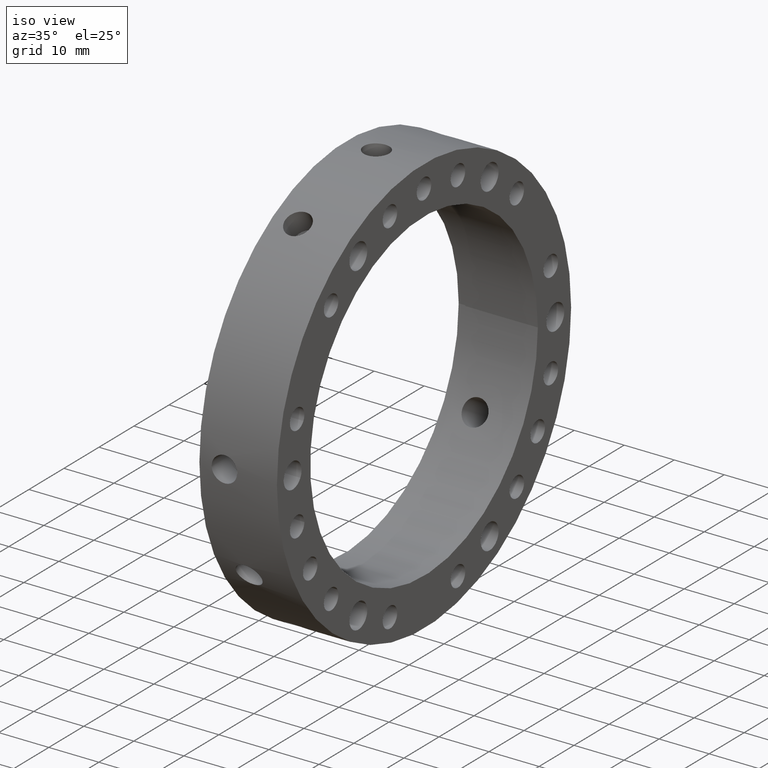
[diagram: clean part render]
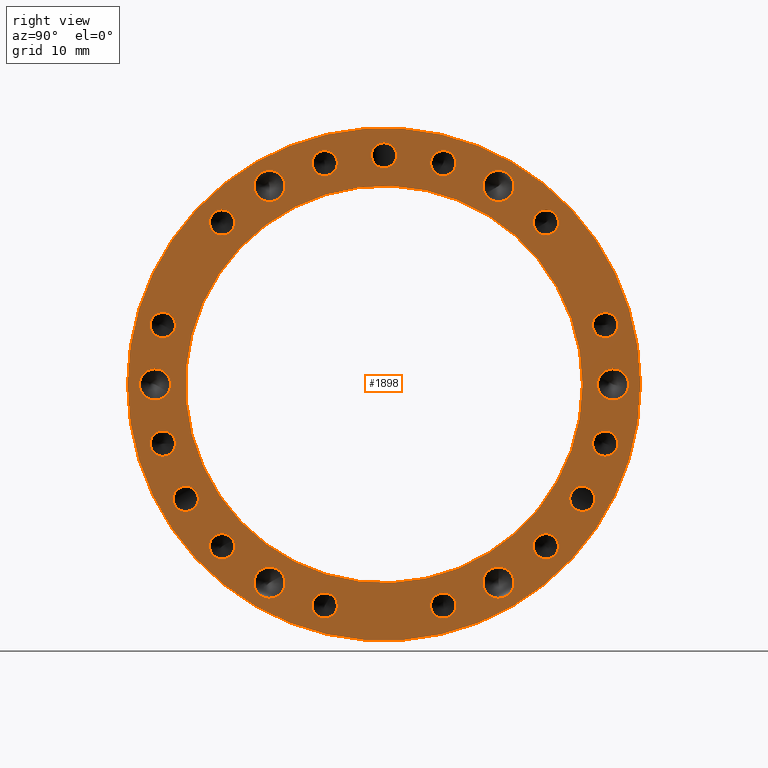
[diagram: tour spotlight — one face highlighted and labeled with its STEP entity id]
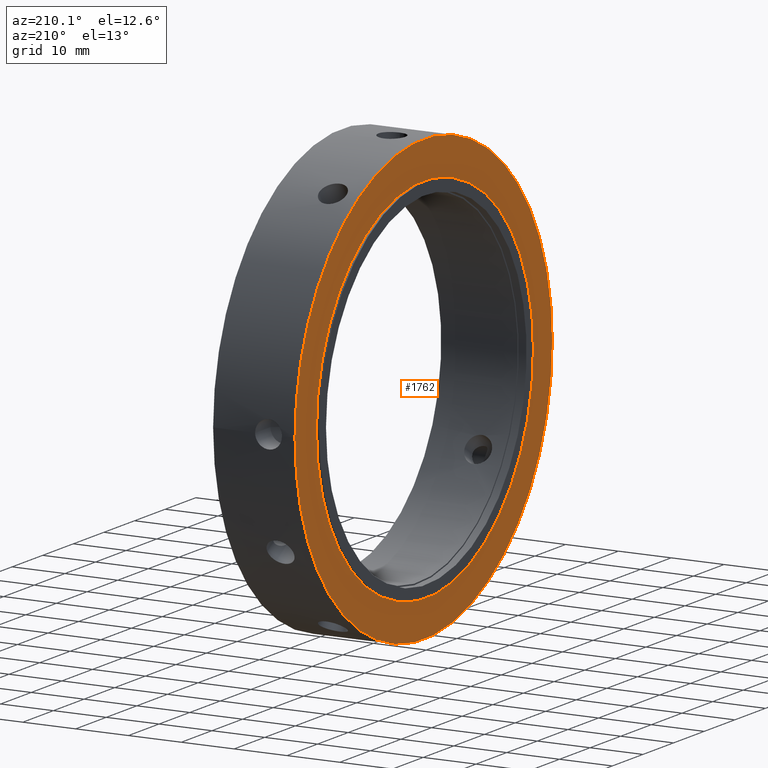
[diagram: tour spotlight — one face highlighted and labeled with its STEP entity id]
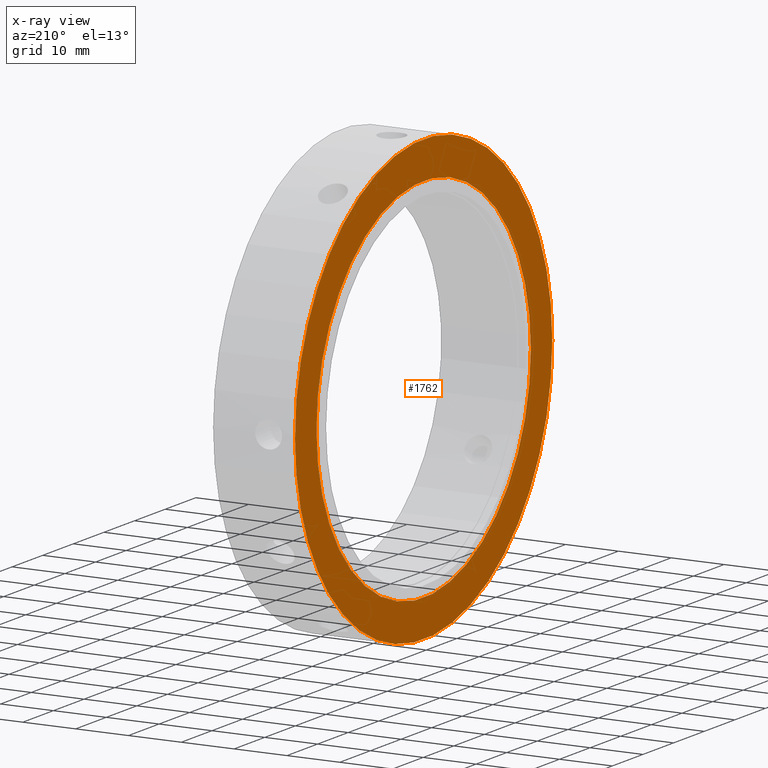
[diagram: x-ray of the same camera — body ghosted, this tour face saturated]
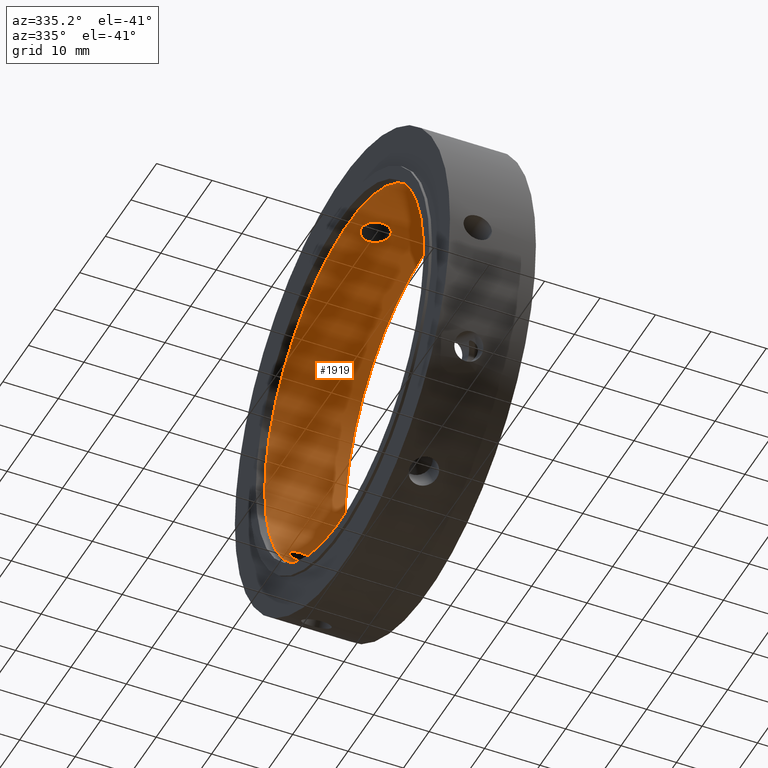
[diagram: tour spotlight — one face highlighted and labeled with its STEP entity id]
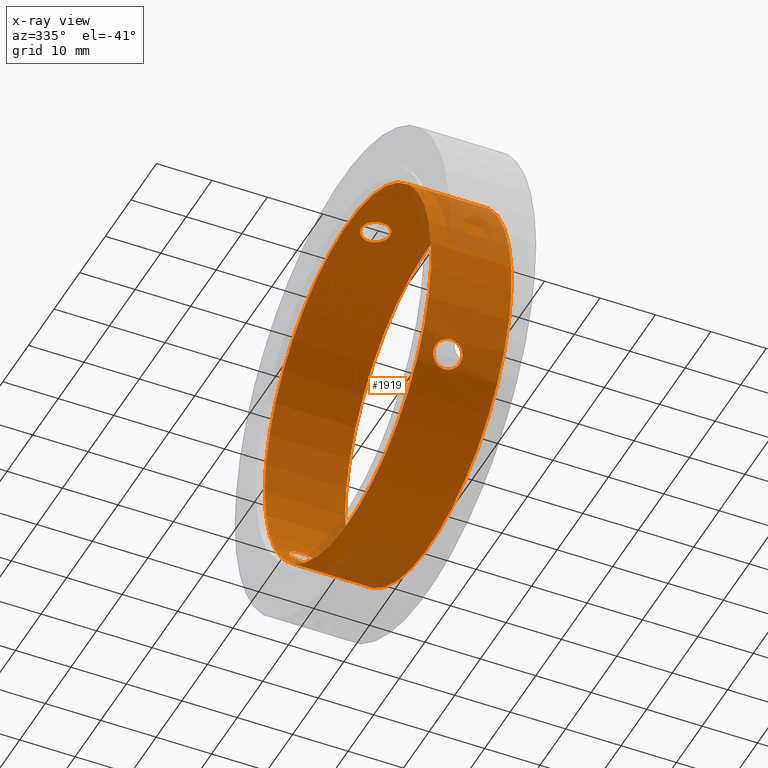
[diagram: x-ray of the same camera — body ghosted, this tour face saturated]
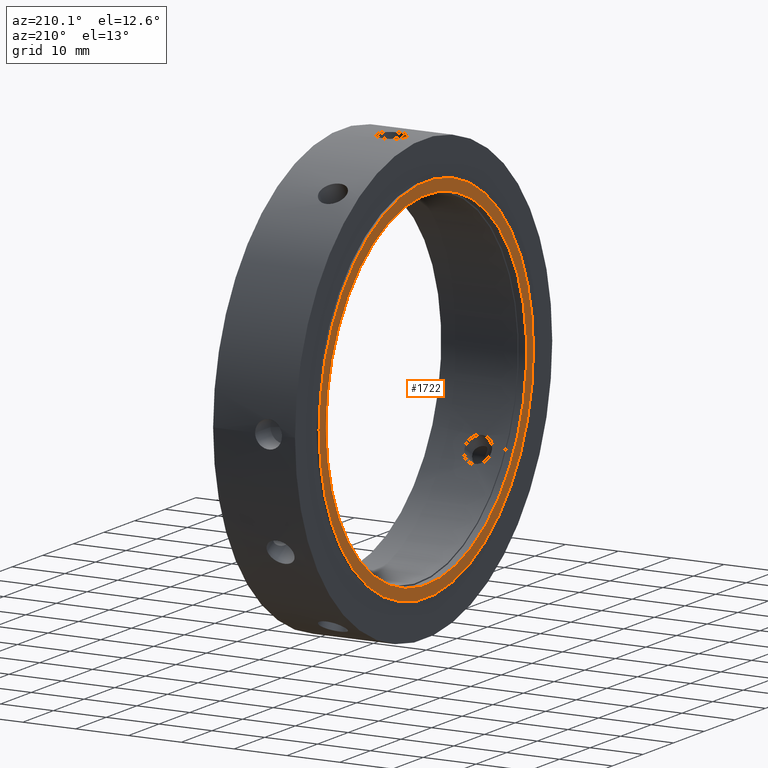
[diagram: tour spotlight — one face highlighted and labeled with its STEP entity id]
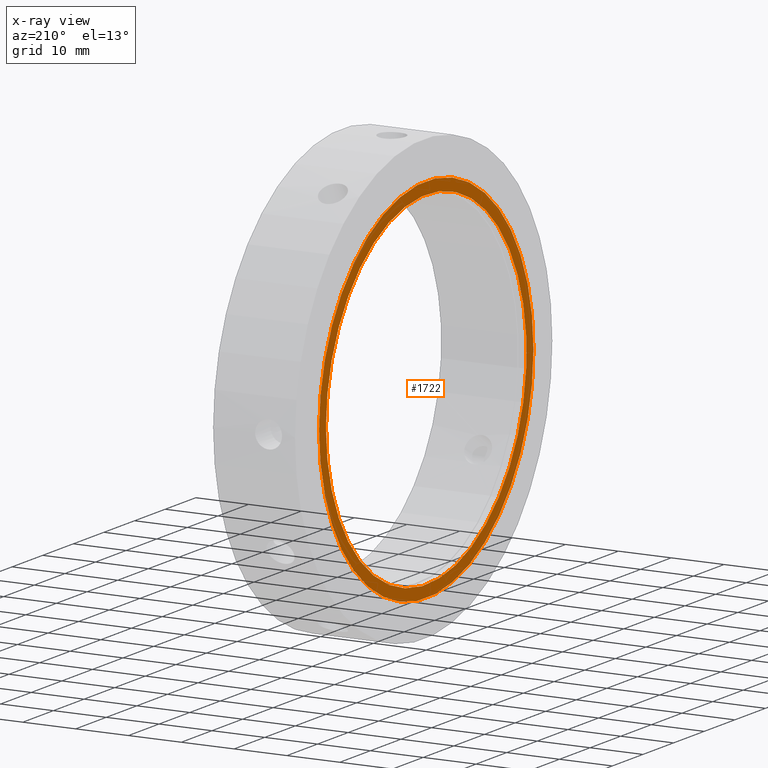
[diagram: x-ray of the same camera — body ghosted, this tour face saturated]
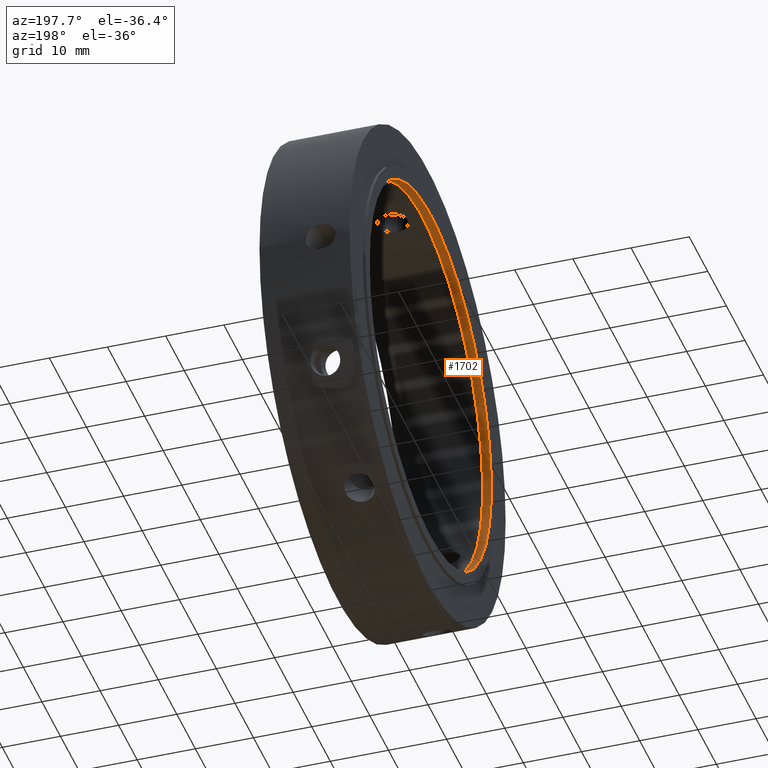
[diagram: tour spotlight — one face highlighted and labeled with its STEP entity id]
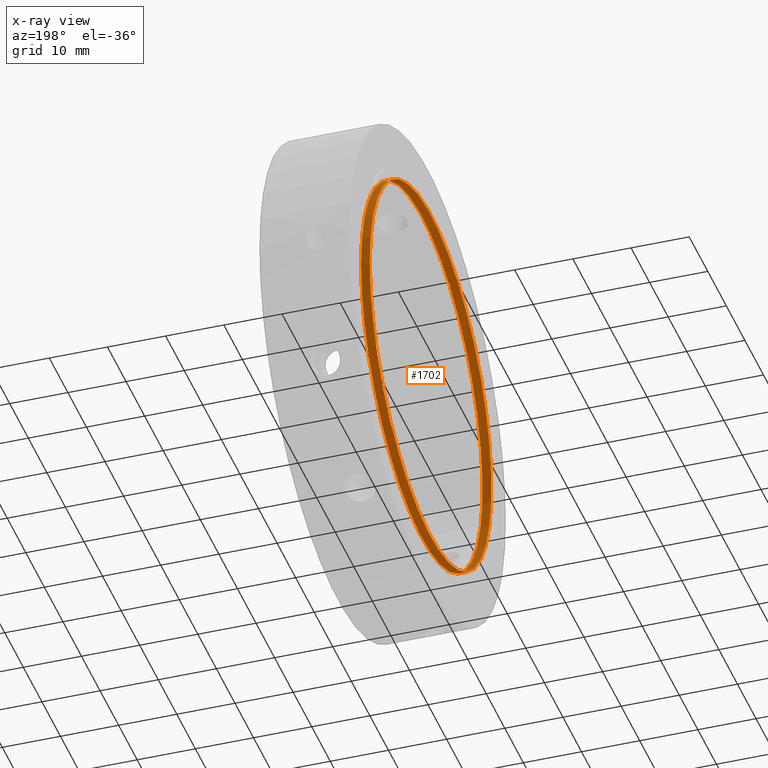
[diagram: x-ray of the same camera — body ghosted, this tour face saturated]
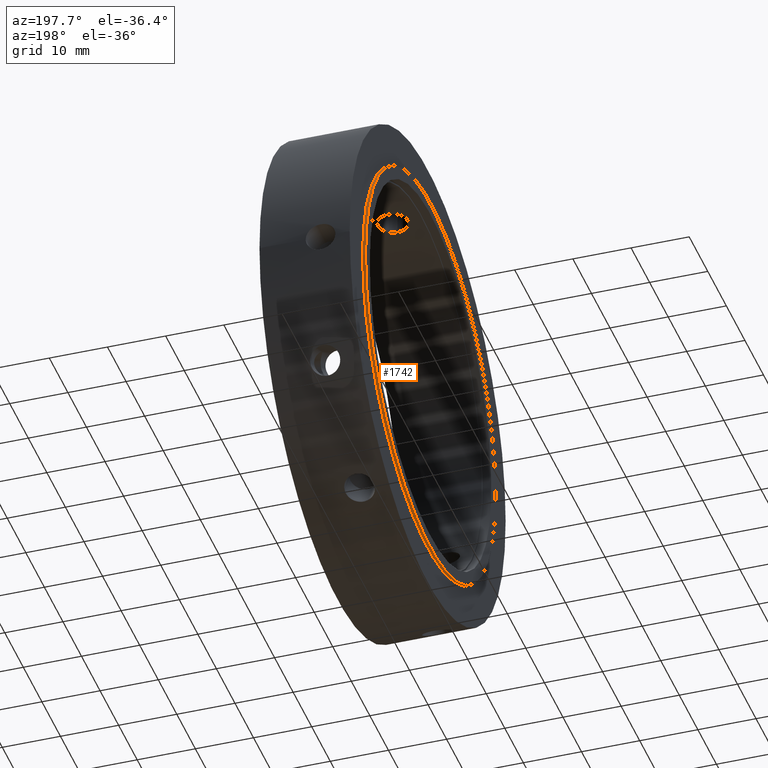
[diagram: tour spotlight — one face highlighted and labeled with its STEP entity id]
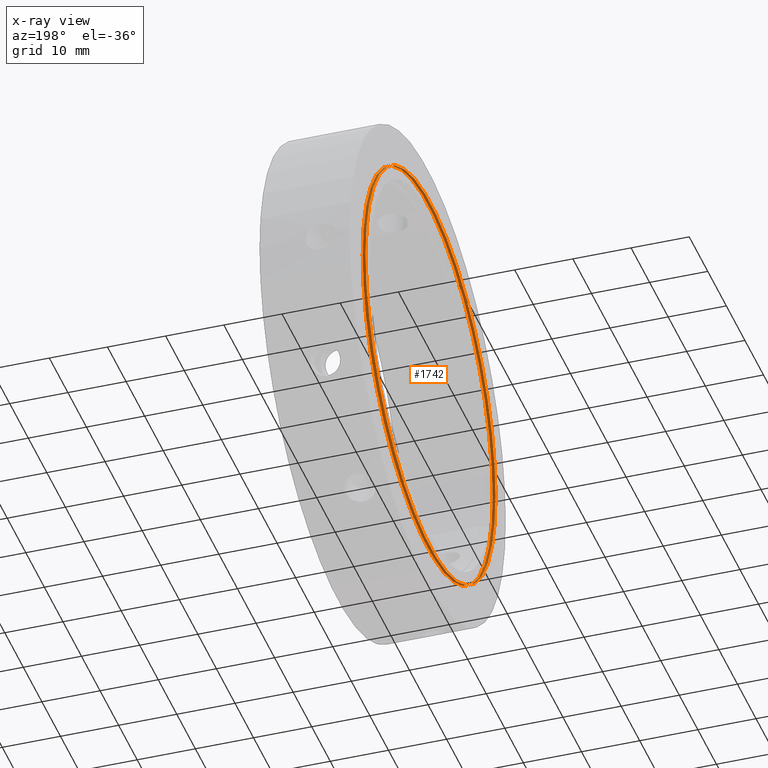
[diagram: x-ray of the same camera — body ghosted, this tour face saturated]
A machine part: a face-by-face anatomy tour. The part has 62 B-rep faces; the first image is the clean iso view, then the 6 largest visible faces are spotlighted one at a time (largest first), each with its STEP entity span.

Face 1 — right view, entity #1898. In plain terms, the highlighted planar face has unit normal (1, 0, 0).
Definition (entity closure, byte-faithful):
#90=CARTESIAN_POINT('',(15.999999999999989,8.672214191344533,34.432143976217617));
#91=VERTEX_POINT('',#90);
#92=CARTESIAN_POINT('',(15.999999999999989,9.705714191344532,36.222218485840052));
#93=DIRECTION('',(-1.0,0.0,0.0));
#94=DIRECTION('',(0.0,-0.5,-0.866025403784438));
#95=AXIS2_PLACEMENT_3D('',#92,#93,#94);
#96=CIRCLE('',#95,2.067);
#97=EDGE_CURVE('',#91,#91,#96,.T.);
#127=CARTESIAN_POINT('',(15.999999999999989,24.726429784873105,25.483004294495515));
#128=VERTEX_POINT('',#127);
#129=CARTESIAN_POINT('',(15.999999999999989,26.51650429449554,26.516504294495515));
#130=DIRECTION('',(-1.0,0.0,0.0));
#131=DIRECTION('',(0.0,-0.866025403784439,-0.499999999999999));
#132=AXIS2_PLACEMENT_3D('',#129,#130,#131);
#133=CIRCLE('',#132,2.067);
#134=EDGE_CURVE('',#128,#128,#133,.T.);
#164=CARTESIAN_POINT('',(15.999999999999989,34.155218485840052,9.705714191344532));
#165=VERTEX_POINT('',#164);
#166=CARTESIAN_POINT('',(15.999999999999989,36.222218485840052,9.705714191344532));
#167=DIRECTION('',(-1.0,0.0,0.0));
#168=DIRECTION('',(0.0,-1.0,0.0));
#169=AXIS2_PLACEMENT_3D('',#166,#167,#168);
#170=CIRCLE('',#169,2.067);
#171=EDGE_CURVE('',#165,#165,#170,.T.);
#201=CARTESIAN_POINT('',(15.999999999999989,34.432143976217617,-8.672214191344533));
#202=VERTEX_POINT('',#201);
#203=CARTESIAN_POINT('',(15.999999999999989,36.222218485840052,-9.705714191344532));
#204=DIRECTION('',(-1.0,0.0,0.0));
#205=DIRECTION('',(0.0,-0.866025403784438,0.5));
#206=AXIS2_PLACEMENT_3D('',#203,#204,#205);
#207=CIRCLE('',#206,2.067);
#208=EDGE_CURVE('',#202,#202,#207,.T.);
#238=CARTESIAN_POINT('',(15.999999999999989,25.483004294495526,-24.726429784873091));
#239=VERTEX_POINT('',#238);
#240=CARTESIAN_POINT('',(15.999999999999989,26.51650429449553,-26.516504294495526));
#241=DIRECTION('',(-1.0,0.0,0.0));
#242=DIRECTION('',(0.0,-0.5,0.866025403784439));
#243=AXIS2_PLACEMENT_3D('',#240,#241,#242);
#244=CIRCLE('',#243,2.067);
#245=EDGE_CURVE('',#239,#239,#244,.T.);
#275=CARTESIAN_POINT('',(15.999999999999989,9.705714191344535,-34.155218485840052));
#276=VERTEX_POINT('',#275);
#277=CARTESIAN_POINT('',(15.999999999999989,9.705714191344534,-36.222218485840052));
#278=DIRECTION('',(-1.0,0.0,0.0));
#279=DIRECTION('',(0.0,0.0,1.0));
#280=AXIS2_PLACEMENT_3D('',#277,#278,#279);
#281=CIRCLE('',#280,2.067);
#282=EDGE_CURVE('',#276,#276,#281,.T.);
#312=CARTESIAN_POINT('',(15.999999999999989,-8.672214191344532,-34.432143976217624));
#313=VERTEX_POINT('',#312);
#314=CARTESIAN_POINT('',(15.999999999999989,-9.705714191344526,-36.222218485840052));
#315=DIRECTION('',(-1.0,0.0,0.0));
#316=DIRECTION('',(0.0,0.5,0.866025403784439));
#317=AXIS2_PLACEMENT_3D('',#314,#315,#316);
#318=CIRCLE('',#317,2.067);
#319=EDGE_CURVE('',#313,#313,#318,.T.);
#349=CARTESIAN_POINT('',(15.999999999999989,-24.726429784873091,-25.483004294495526));
#350=VERTEX_POINT('',#349);
#351=CARTESIAN_POINT('',(15.999999999999989,-26.516504294495526,-26.51650429449553));
#352=DIRECTION('',(-1.0,0.0,0.0));
#353=DIRECTION('',(0.0,0.866025403784439,0.5));
#354=AXIS2_PLACEMENT_3D('',#351,#352,#353);
#355=CIRCLE('',#354,2.067);
#356=EDGE_CURVE('',#350,#350,#355,.T.);
#386=CARTESIAN_POINT('',(15.999999999999989,-34.155218485840052,-9.705714191344539));
#387=VERTEX_POINT('',#386);
#388=CARTESIAN_POINT('',(15.999999999999989,-36.222218485840052,-9.705714191344537));
#389=DIRECTION('',(-1.0,0.0,0.0));
#390=DIRECTION('',(0.0,1.0,0.0));
#391=AXIS2_PLACEMENT_3D('',#388,#389,#390);
#392=CIRCLE('',#391,2.067);
#393=EDGE_CURVE('',#387,#387,#392,.T.);
#423=CARTESIAN_POINT('',(15.999999999999989,-34.432143976217624,8.672214191344521));
#424=VERTEX_POINT('',#423);
#425=CARTESIAN_POINT('',(15.999999999999989,-36.22221848584006,9.705714191344521));
#426=DIRECTION('',(-1.0,0.0,0.0));
#427=DIRECTION('',(0.0,0.866025403784439,-0.5));
#428=AXIS2_PLACEMENT_3D('',#425,#426,#427);
#429=CIRCLE('',#428,2.067);
#430=EDGE_CURVE('',#424,#424,#429,.T.);
#460=CARTESIAN_POINT('',(15.999999999999989,-25.483004294495537,24.726429784873083));
#461=VERTEX_POINT('',#460);
#462=CARTESIAN_POINT('',(15.999999999999989,-26.516504294495533,26.516504294495519));
#463=DIRECTION('',(-1.0,0.0,0.0));
#464=DIRECTION('',(0.0,0.5,-0.866025403784439));
#465=AXIS2_PLACEMENT_3D('',#462,#463,#464);
#466=CIRCLE('',#465,2.067);
#467=EDGE_CURVE('',#461,#461,#466,.T.);
#497=CARTESIAN_POINT('',(15.999999999999989,-9.705714191344539,34.155218485840052));
#498=VERTEX_POINT('',#497);
#499=CARTESIAN_POINT('',(15.999999999999989,-9.705714191344539,36.222218485840052));
#500=DIRECTION('',(-1.0,0.0,0.0));
#501=DIRECTION('',(0.0,0.0,-1.0));
#502=AXIS2_PLACEMENT_3D('',#499,#500,#501);
#503=CIRCLE('',#502,2.067);
#504=EDGE_CURVE('',#498,#498,#503,.T.);
#609=CARTESIAN_POINT('',(15.999999999999989,16.541635220349697,31.200952641916455));
#610=VERTEX_POINT('',#609);
#611=CARTESIAN_POINT('',(15.999999999999989,18.750000000000014,32.47595264191645));
#612=DIRECTION('',(-1.0,0.0,0.0));
#613=DIRECTION('',(0.0,-0.866025403784439,-0.499999999999999));
#614=AXIS2_PLACEMENT_3D('',#611,#612,#613);
#615=CIRCLE('',#614,2.55);
#616=EDGE_CURVE('',#610,#610,#615,.T.);
#721=CARTESIAN_POINT('',(15.999999999999989,35.291635220349697,1.275000000000006));
#722=VERTEX_POINT('',#721);
#723=CARTESIAN_POINT('',(15.999999999999989,37.500000000000014,2.220446E-015));
#724=DIRECTION('',(-1.0,0.0,0.0));
#725=DIRECTION('',(0.0,-0.866025403784438,0.500000000000001));
#726=AXIS2_PLACEMENT_3D('',#723,#724,#725);
#727=CIRCLE('',#726,2.55);
#728=EDGE_CURVE('',#722,#722,#727,.T.);
#833=CARTESIAN_POINT('',(15.999999999999989,18.750000000000025,-29.925952641916453));
#834=VERTEX_POINT('',#833);
#835=CARTESIAN_POINT('',(15.999999999999989,18.750000000000018,-32.47595264191645));
#836=DIRECTION('',(-1.0,0.0,0.0));
#837=DIRECTION('',(0.0,0.0,1.0));
#838=AXIS2_PLACEMENT_3D('',#835,#836,#837);
#839=CIRCLE('',#838,2.55);
#840=EDGE_CURVE('',#834,#834,#839,.T.);
#945=CARTESIAN_POINT('',(15.999999999999989,-16.541635220349672,-31.200952641916469));
#946=VERTEX_POINT('',#945);
#947=CARTESIAN_POINT('',(15.999999999999989,-18.749999999999993,-32.475952641916464));
#948=DIRECTION('',(-1.0,0.0,0.0));
#949=DIRECTION('',(0.0,0.866025403784439,0.5));
#950=AXIS2_PLACEMENT_3D('',#947,#948,#949);
#951=CIRCLE('',#950,2.55);
#952=EDGE_CURVE('',#946,#946,#951,.T.);
#1057=CARTESIAN_POINT('',(15.999999999999989,-35.29163522034969,-1.27500000000002));
#1058=VERTEX_POINT('',#1057);
#1059=CARTESIAN_POINT('',(15.999999999999989,-37.500000000000007,-1.776357E-014));
#1060=DIRECTION('',(-1.0,0.0,0.0));
#1061=DIRECTION('',(0.0,0.866025403784439,-0.5));
#1062=AXIS2_PLACEMENT_3D('',#1059,#1060,#1061);
#1063=CIRCLE('',#1062,2.55);
#1064=EDGE_CURVE('',#1058,#1058,#1063,.T.);
#1094=CARTESIAN_POINT('',(15.999999999999989,-18.750000000000025,29.925952641916446));
#1095=VERTEX_POINT('',#1094);
#1096=CARTESIAN_POINT('',(15.999999999999989,-18.750000000000025,32.475952641916443));
#1097=DIRECTION('',(-1.0,0.0,0.0));
#1098=DIRECTION('',(0.0,0.0,-1.0));
#1099=AXIS2_PLACEMENT_3D('',#1096,#1097,#1098);
#1100=CIRCLE('',#1099,2.55);
#1101=EDGE_CURVE('',#1095,#1095,#1100,.T.);
#1189=CARTESIAN_POINT('',(15.999999999999989,30.685878132294008,-17.716500000000018));
#1190=VERTEX_POINT('',#1189);
#1191=CARTESIAN_POINT('',(15.999999999999989,32.475952641916443,-18.750000000000018));
#1192=DIRECTION('',(-1.0,0.0,0.0));
#1193=DIRECTION('',(0.0,-0.866025403784438,0.5));
#1194=AXIS2_PLACEMENT_3D('',#1191,#1192,#1193);
#1195=CIRCLE('',#1194,2.067);
#1196=EDGE_CURVE('',#1190,#1190,#1195,.T.);
#1346=CARTESIAN_POINT('',(15.999999999999989,-30.685878132294022,-17.716499999999993));
#1347=VERTEX_POINT('',#1346);
#1348=CARTESIAN_POINT('',(15.999999999999989,-32.475952641916457,-18.749999999999993));
#1349=DIRECTION('',(-1.0,0.0,0.0));
#1350=DIRECTION('',(0.0,0.866025403784439,0.5));
#1351=AXIS2_PLACEMENT_3D('',#1348,#1349,#1350);
#1352=CIRCLE('',#1351,2.067);
#1353=EDGE_CURVE('',#1347,#1347,#1352,.T.);
#1552=CARTESIAN_POINT('',(15.999999999999989,0.0,35.433));
#1553=VERTEX_POINT('',#1552);
#1554=CARTESIAN_POINT('',(15.999999999999989,0.0,37.5));
#1555=DIRECTION('',(-1.0,0.0,0.0));
#1556=DIRECTION('',(0.0,0.0,-1.0));
#1557=AXIS2_PLACEMENT_3D('',#1554,#1555,#1556);
#1558=CIRCLE('',#1557,2.067);
#1559=EDGE_CURVE('',#1553,#1553,#1558,.T.);
#1768=CARTESIAN_POINT('',(15.999999999999988,42.0,0.0));
#1769=VERTEX_POINT('',#1768);
#1770=CARTESIAN_POINT('',(15.999999999999988,0.0,0.0));
#1771=DIRECTION('',(1.0,0.0,0.0));
#1772=DIRECTION('',(0.0,1.0,0.0));
#1773=AXIS2_PLACEMENT_3D('',#1770,#1771,#1772);
#1774=CIRCLE('',#1773,42.0);
#1775=EDGE_CURVE('',#1769,#1769,#1774,.T.);
#1816=CARTESIAN_POINT('',(15.999999999999989,37.25,0.0));
#1817=DIRECTION('',(1.0,0.0,0.0));
#1818=DIRECTION('',(0.0,0.0,-1.0));
#1819=AXIS2_PLACEMENT_3D('',#1816,#1817,#1818);
#1820=PLANE('',#1819);
#1821=ORIENTED_EDGE('',*,*,#1775,.T.);
#1822=EDGE_LOOP('',(#1821));
#1823=FACE_OUTER_BOUND('',#1822,.T.);
#1824=ORIENTED_EDGE('',*,*,#97,.T.);
#1825=EDGE_LOOP('',(#1824));
#1826=FACE_BOUND('',#1825,.T.);
#1827=ORIENTED_EDGE('',*,*,#134,.T.);
#1828=EDGE_LOOP('',(#1827));
#1829=FACE_BOUND('',#1828,.T.);
#1830=ORIENTED_EDGE('',*,*,#171,.T.);
#1831=EDGE_LOOP('',(#1830));
#1832=FACE_BOUND('',#1831,.T.);
#1833=ORIENTED_EDGE('',*,*,#208,.T.);
#1834=EDGE_LOOP('',(#1833));
#1835=FACE_BOUND('',#1834,.T.);
#1836=ORIENTED_EDGE('',*,*,#245,.T.);
#1837=EDGE_LOOP('',(#1836));
#1838=FACE_BOUND('',#1837,.T.);
#1839=ORIENTED_EDGE('',*,*,#282,.T.);
#1840=EDGE_LOOP('',(#1839));
#1841=FACE_BOUND('',#1840,.T.);
#1842=ORIENTED_EDGE('',*,*,#319,.T.);
#1843=EDGE_LOOP('',(#1842));
#1844=FACE_BOUND('',#1843,.T.);
#1845=ORIENTED_EDGE('',*,*,#356,.T.);
#1846=EDGE_LOOP('',(#1845));
#1847=FACE_BOUND('',#1846,.T.);
#1848=ORIENTED_EDGE('',*,*,#393,.T.);
#1849=EDGE_LOOP('',(#1848));
#1850=FACE_BOUND('',#1849,.T.);
#1851=ORIENTED_EDGE('',*,*,#430,.T.);
#1852=EDGE_LOOP('',(#1851));
#1853=FACE_BOUND('',#1852,.T.);
#1854=ORIENTED_EDGE('',*,*,#467,.T.);
#1855=EDGE_LOOP('',(#1854));
#1856=FACE_BOUND('',#1855,.T.);
#1857=ORIENTED_EDGE('',*,*,#504,.T.);
#1858=EDGE_LOOP('',(#1857));
#1859=FACE_BOUND('',#1858,.T.);
#1860=ORIENTED_EDGE('',*,*,#616,.T.);
#1861=EDGE_LOOP('',(#1860));
#1862=FACE_BOUND('',#1861,.T.);
#1863=ORIENTED_EDGE('',*,*,#728,.T.);
#1864=EDGE_LOOP('',(#1863));
#1865=FACE_BOUND('',#1864,.T.);
#1866=ORIENTED_EDGE('',*,*,#840,.T.);
#1867=EDGE_LOOP('',(#1866));
#1868=FACE_BOUND('',#1867,.T.);
#1869=ORIENTED_EDGE('',*,*,#952,.T.);
#1870=EDGE_LOOP('',(#1869));
#1871=FACE_BOUND('',#1870,.T.);
#1872=ORIENTED_EDGE('',*,*,#1064,.T.);
#1873=EDGE_LOOP('',(#1872));
#1874=FACE_BOUND('',#1873,.T.);
#1875=ORIENTED_EDGE('',*,*,#1101,.T.);
#1876=EDGE_LOOP('',(#1875));
#1877=FACE_BOUND('',#1876,.T.);
#1878=ORIENTED_EDGE('',*,*,#1196,.T.);
#1879=EDGE_LOOP('',(#1878));
#1880=FACE_BOUND('',#1879,.T.);
#1881=ORIENTED_EDGE('',*,*,#1353,.T.);
#1882=EDGE_LOOP('',(#1881));
#1883=FACE_BOUND('',#1882,.T.);
#1884=ORIENTED_EDGE('',*,*,#1559,.T.);
#1885=EDGE_LOOP('',(#1884));
#1886=FACE_BOUND('',#1885,.T.);
#1887=CARTESIAN_POINT('',(15.999999999999993,32.5,0.0));
#1888=VERTEX_POINT('',#1887);
#1889=CARTESIAN_POINT('',(15.999999999999993,0.0,0.0));
#1890=DIRECTION('',(1.0,0.0,0.0));
#1891=DIRECTION('',(0.0,1.0,0.0));
#1892=AXIS2_PLACEMENT_3D('',#1889,#1890,#1891);
#1893=CIRCLE('',#1892,32.5);
#1894=EDGE_CURVE('',#1888,#1888,#1893,.T.);
#1895=ORIENTED_EDGE('',*,*,#1894,.F.);
#1896=EDGE_LOOP('',(#1895));
#1897=FACE_BOUND('',#1896,.T.);
#1898=ADVANCED_FACE('',(#1823,#1826,#1829,#1832,#1835,#1838,#1841,#1844,#1847,#1850,#1853,#1856,#1859,#1862,#1865,#1868,#1871,#1874,#1877,#1880,#1883,#1886,#1897),#1820,.T.);

Face 2 — auxiliary view, entity #1762. An x-ray twin of the same camera follows (body ghosted, this face saturated) — the face is partly hidden behind the body. In plain terms, the highlighted planar face has unit normal (-1, 0, 0).
Definition (entity closure, byte-faithful):
#1728=CARTESIAN_POINT('',(0.499999999999994,34.999999999999993,0.0));
#1729=VERTEX_POINT('',#1728);
#1730=CARTESIAN_POINT('',(0.499999999999994,0.0,0.0));
#1731=DIRECTION('',(1.0,0.0,0.0));
#1732=DIRECTION('',(0.0,1.0,0.0));
#1733=AXIS2_PLACEMENT_3D('',#1730,#1731,#1732);
#1734=CIRCLE('',#1733,34.999999999999993);
#1735=EDGE_CURVE('',#1729,#1729,#1734,.T.);
#1743=CARTESIAN_POINT('',(0.499999999999992,38.5,0.0));
#1744=DIRECTION('',(-1.0,0.0,0.0));
#1745=DIRECTION('',(0.0,0.0,1.0));
#1746=AXIS2_PLACEMENT_3D('',#1743,#1744,#1745);
#1747=PLANE('',#1746);
#1748=CARTESIAN_POINT('',(0.499999999999989,42.0,0.0));
#1749=VERTEX_POINT('',#1748);
#1750=CARTESIAN_POINT('',(0.499999999999989,0.0,0.0));
#1751=DIRECTION('',(1.0,0.0,0.0));
#1752=DIRECTION('',(0.0,1.0,0.0));
#1753=AXIS2_PLACEMENT_3D('',#1750,#1751,#1752);
#1754=CIRCLE('',#1753,42.0);
#1755=EDGE_CURVE('',#1749,#1749,#1754,.T.);
#1756=ORIENTED_EDGE('',*,*,#1755,.F.);
#1757=EDGE_LOOP('',(#1756));
#1758=FACE_OUTER_BOUND('',#1757,.T.);
#1759=ORIENTED_EDGE('',*,*,#1735,.T.);
#1760=EDGE_LOOP('',(#1759));
#1761=FACE_BOUND('',#1760,.T.);
#1762=ADVANCED_FACE('',(#1758,#1761),#1747,.T.);

Face 3 — auxiliary view, entity #1919. An x-ray twin of the same camera follows (body ghosted, this face saturated) — the face is partly hidden behind the body. In plain terms, the highlighted cylindrical surface (bore or boss wall) has radius 32.5 mm, axis along (1, 0, 0).
Definition (entity closure, byte-faithful):
#1299=CARTESIAN_POINT('',(6.499999999999987,29.334056024748939,-13.991538769445292));
#1300=VERTEX_POINT('',#1299);
#1301=CARTESIAN_POINT('',(6.499999999999987,29.334056024748936,-13.991538769445286));
#1302=CARTESIAN_POINT('',(6.820325173832618,29.334056024748936,-13.991538769445286));
#1303=CARTESIAN_POINT('',(7.161911382715848,29.306571597217356,-14.049622301756397));
#1304=CARTESIAN_POINT('',(7.790139602775731,29.192814840465537,-14.28448764393703));
#1305=CARTESIAN_POINT('',(8.076792826357337,29.106308809768962,-14.461126189212465));
#1306=CARTESIAN_POINT('',(8.529451466782781,28.901762239256815,-14.865716347466737));
#1307=CARTESIAN_POINT('',(8.725678174710433,28.770027165899947,-15.120657847792167));
#1308=CARTESIAN_POINT('',(8.985956079508238,28.472259241441627,-15.674157411596511));
#1309=CARTESIAN_POINT('',(9.049999999999987,28.305988004046519,-15.972590618556271));
#1310=CARTESIAN_POINT('',(9.049999999999987,27.985663241941971,-16.527409381443757));
#1311=CARTESIAN_POINT('',(8.985956079508236,27.810348122079517,-16.820621100426479));
#1312=CARTESIAN_POINT('',(8.725678174710431,27.479887401070506,-17.355245469341714));
#1313=CARTESIAN_POINT('',(8.529451466782778,27.324969121988204,-17.596802139600879));
#1314=CARTESIAN_POINT('',(8.076792826357337,27.076857052074914,-17.97623974504852));
#1315=CARTESIAN_POINT('',(7.790139602775729,26.967136599927144,-18.13947543785002));
#1316=CARTESIAN_POINT('',(7.161911382715845,26.820615625506107,-18.35542435013954));
#1317=CARTESIAN_POINT('',(6.820325173832618,26.784056024748942,-18.408268328745919));
#1318=CARTESIAN_POINT('',(6.179674826167356,26.784056024748942,-18.408268328745919));
#1319=CARTESIAN_POINT('',(5.838088617284126,26.820615625506107,-18.35542435013954));
#1320=CARTESIAN_POINT('',(5.209860397224245,26.967136599927144,-18.13947543785002));
#1321=CARTESIAN_POINT('',(4.923207173642638,27.076857052074914,-17.97623974504852));
#1322=CARTESIAN_POINT('',(4.470548533217196,27.324969121988204,-17.596802139600879));
#1323=CARTESIAN_POINT('',(4.27432182528954,27.479887401070506,-17.35524546934171));
#1324=CARTESIAN_POINT('',(4.014043920491737,27.810348122079517,-16.820621100426479));
#1325=CARTESIAN_POINT('',(3.949999999999988,27.985663241941971,-16.527409381443757));
#1326=CARTESIAN_POINT('',(3.949999999999986,28.305988004046519,-15.972590618556271));
#1327=CARTESIAN_POINT('',(4.014043920491736,28.472259241441627,-15.674157411596511));
#1328=CARTESIAN_POINT('',(4.27432182528954,28.770027165899947,-15.120657847792167));
#1329=CARTESIAN_POINT('',(4.470548533217193,28.901762239256815,-14.865716347466737));
#1330=CARTESIAN_POINT('',(4.923207173642636,29.106308809768962,-14.461126189212465));
#1331=CARTESIAN_POINT('',(5.209860397224243,29.192814840465537,-14.28448764393703));
#1332=CARTESIAN_POINT('',(5.838088617284125,29.306571597217356,-14.049622301756397));
#1333=CARTESIAN_POINT('',(6.179674826167356,29.334056024748936,-13.991538769445286));
#1334=CARTESIAN_POINT('',(6.499999999999987,29.334056024748936,-13.991538769445286));
#1335=B_SPLINE_CURVE_WITH_KNOTS('',3,(#1301,#1302,#1303,#1304,#1305,#1306,#1307,#1308,#1309,#1310,#1311,#1312,#1313,#1314,#1315,#1316,#1317,#1318,#1319,#1320,#1321,#1322,#1323,#1324,#1325,#1326,#1327,#1328,#1329,#1330,#1331,#1332,#1333,#1334),.UNSPECIFIED.,.T.,.U.,(4,2,2,2,2,2,2,2,2,2,2,2,2,2,2,2,4),(0.0,0.096097552149789,0.192195104299579,0.288292532930943,0.384389961562307,0.48048739019367,0.576584818825034,0.672682370974823,0.768779923124613,0.864877475274402,0.960975027424191,1.057072456055555,1.153169884686919,1.249267313318283,1.345364741949647,1.441462294099436,1.537559846249225),.UNSPECIFIED.);
#1336=EDGE_CURVE('',#1300,#1300,#1335,.T.);
#1456=CARTESIAN_POINT('',(6.499999999999987,-26.784056024748949,-18.408268328745908));
#1457=VERTEX_POINT('',#1456);
#1458=CARTESIAN_POINT('',(6.499999999999987,-26.784056024748946,-18.408268328745908));
#1459=CARTESIAN_POINT('',(6.820325173832619,-26.784056024748946,-18.408268328745908));
#1460=CARTESIAN_POINT('',(7.161911382715847,-26.820615625506115,-18.355424350139526));
#1461=CARTESIAN_POINT('',(7.790139602775732,-26.967136599927155,-18.13947543785001));
#1462=CARTESIAN_POINT('',(8.076792826357337,-27.076857052074928,-17.976239745048499));
#1463=CARTESIAN_POINT('',(8.529451466782778,-27.324969121988222,-17.596802139600854));
#1464=CARTESIAN_POINT('',(8.725678174710437,-27.479887401070521,-17.355245469341689));
#1465=CARTESIAN_POINT('',(8.985956079508238,-27.810348122079528,-16.820621100426457));
#1466=CARTESIAN_POINT('',(9.049999999999987,-27.985663241941985,-16.527409381443736));
#1467=CARTESIAN_POINT('',(9.049999999999987,-28.30598800404654,-15.972590618556248));
#1468=CARTESIAN_POINT('',(8.985956079508236,-28.472259241441652,-15.674157411596488));
#1469=CARTESIAN_POINT('',(8.725678174710431,-28.770027165899961,-15.120657847792147));
#1470=CARTESIAN_POINT('',(8.529451466782778,-28.901762239256822,-14.865716347466723));
#1471=CARTESIAN_POINT('',(8.076792826357336,-29.106308809768969,-14.461126189212447));
#1472=CARTESIAN_POINT('',(7.790139602775729,-29.192814840465537,-14.284487643937014));
#1473=CARTESIAN_POINT('',(7.161911382715846,-29.306571597217356,-14.049622301756381));
#1474=CARTESIAN_POINT('',(6.820325173832618,-29.334056024748946,-13.991538769445267));
#1475=CARTESIAN_POINT('',(6.179674826167356,-29.334056024748946,-13.991538769445267));
#1476=CARTESIAN_POINT('',(5.838088617284129,-29.306571597217356,-14.049622301756381));
#1477=CARTESIAN_POINT('',(5.209860397224245,-29.192814840465537,-14.284487643937014));
#1478=CARTESIAN_POINT('',(4.92320717364264,-29.106308809768969,-14.461126189212447));
#1479=CARTESIAN_POINT('',(4.470548533217198,-28.901762239256822,-14.865716347466723));
#1480=CARTESIAN_POINT('',(4.274321825289543,-28.770027165899958,-15.120657847792145));
#1481=CARTESIAN_POINT('',(4.014043920491738,-28.472259241441648,-15.674157411596486));
#1482=CARTESIAN_POINT('',(3.949999999999987,-28.30598800404654,-15.972590618556248));
#1483=CARTESIAN_POINT('',(3.949999999999986,-27.985663241941985,-16.527409381443736));
#1484=CARTESIAN_POINT('',(4.014043920491735,-27.810348122079532,-16.820621100426457));
#1485=CARTESIAN_POINT('',(4.274321825289537,-27.479887401070524,-17.355245469341693));
#1486=CARTESIAN_POINT('',(4.470548533217195,-27.324969121988225,-17.596802139600854));
#1487=CARTESIAN_POINT('',(4.923207173642636,-27.076857052074928,-17.976239745048499));
#1488=CARTESIAN_POINT('',(5.209860397224241,-26.967136599927155,-18.13947543785001));
#1489=CARTESIAN_POINT('',(5.838088617284126,-26.820615625506115,-18.355424350139526));
#1490=CARTESIAN_POINT('',(6.179674826167356,-26.784056024748946,-18.408268328745908));
#1491=CARTESIAN_POINT('',(6.499999999999988,-26.784056024748946,-18.408268328745908));
#1492=B_SPLINE_CURVE_WITH_KNOTS('',3,(#1458,#1459,#1460,#1461,#1462,#1463,#1464,#1465,#1466,#1467,#1468,#1469,#1470,#1471,#1472,#1473,#1474,#1475,#1476,#1477,#1478,#1479,#1480,#1481,#1482,#1483,#1484,#1485,#1486,#1487,#1488,#1489,#1490,#1491),.UNSPECIFIED.,.T.,.U.,(4,2,2,2,2,2,2,2,2,2,2,2,2,2,2,2,4),(0.0,0.09609755214979,0.192195104299579,0.288292532930943,0.384389961562306,0.48048739019367,0.576584818825034,0.672682370974823,0.768779923124613,0.864877475274402,0.960975027424191,1.057072456055555,1.153169884686919,1.249267313318283,1.345364741949646,1.441462294099436,1.537559846249225),.UNSPECIFIED.);
#1493=EDGE_CURVE('',#1457,#1457,#1492,.T.);
#1613=CARTESIAN_POINT('',(6.499999999999987,-2.55,32.399807098191189));
#1614=VERTEX_POINT('',#1613);
#1615=CARTESIAN_POINT('',(6.499999999999986,-2.55,32.399807098191189));
#1616=CARTESIAN_POINT('',(6.820325173832618,-2.55,32.399807098191189));
#1617=CARTESIAN_POINT('',(7.161911382715847,-2.485955971711249,32.405046651895915));
#1618=CARTESIAN_POINT('',(7.79013960277573,-2.225678240538388,32.423963081787029));
#1619=CARTESIAN_POINT('',(8.076792826357336,-2.029451757694043,32.437365934260967));
#1620=CARTESIAN_POINT('',(8.529451466782776,-1.576793117268602,32.462518487067598));
#1621=CARTESIAN_POINT('',(8.725678174710437,-1.290139764829434,32.475903317133849));
#1622=CARTESIAN_POINT('',(8.98595607950824,-0.661911119362114,32.494778512022954));
#1623=CARTESIAN_POINT('',(9.049999999999987,-0.320324762104545,32.5));
#1624=CARTESIAN_POINT('',(9.049999999999987,0.320324762104545,32.5));
#1625=CARTESIAN_POINT('',(8.985956079508238,0.661911119362114,32.494778512022954));
#1626=CARTESIAN_POINT('',(8.725678174710435,1.290139764829434,32.475903317133849));
#1627=CARTESIAN_POINT('',(8.529451466782778,1.576793117268602,32.462518487067598));
#1628=CARTESIAN_POINT('',(8.076792826357336,2.029451757694044,32.437365934260967));
#1629=CARTESIAN_POINT('',(7.790139602775729,2.225678240538389,32.423963081787029));
#1630=CARTESIAN_POINT('',(7.161911382715847,2.485955971711249,32.405046651895915));
#1631=CARTESIAN_POINT('',(6.820325173832619,2.55,32.399807098191189));
#1632=CARTESIAN_POINT('',(6.179674826167355,2.55,32.399807098191182));
#1633=CARTESIAN_POINT('',(5.838088617284127,2.485955971711249,32.405046651895915));
#1634=CARTESIAN_POINT('',(5.209860397224244,2.225678240538388,32.423963081787029));
#1635=CARTESIAN_POINT('',(4.923207173642638,2.029451757694044,32.437365934260967));
#1636=CARTESIAN_POINT('',(4.470548533217197,1.576793117268602,32.462518487067598));
#1637=CARTESIAN_POINT('',(4.274321825289539,1.290139764829434,32.475903317133849));
#1638=CARTESIAN_POINT('',(4.014043920491735,0.661911119362114,32.494778512022954));
#1639=CARTESIAN_POINT('',(3.949999999999987,0.320324762104546,32.5));
#1640=CARTESIAN_POINT('',(3.949999999999987,-0.320324762104545,32.5));
#1641=CARTESIAN_POINT('',(4.014043920491735,-0.661911119362114,32.494778512022954));
#1642=CARTESIAN_POINT('',(4.274321825289539,-1.290139764829434,32.475903317133849));
#1643=CARTESIAN_POINT('',(4.470548533217196,-1.576793117268602,32.462518487067598));
#1644=CARTESIAN_POINT('',(4.923207173642638,-2.029451757694044,32.437365934260967));
#1645=CARTESIAN_POINT('',(5.209860397224244,-2.225678240538388,32.423963081787029));
#1646=CARTESIAN_POINT('',(5.838088617284127,-2.485955971711249,32.405046651895915));
#1647=CARTESIAN_POINT('',(6.179674826167355,-2.55,32.399807098191189));
#1648=CARTESIAN_POINT('',(6.499999999999987,-2.55,32.399807098191189));
#1649=B_SPLINE_CURVE_WITH_KNOTS('',3,(#1615,#1616,#1617,#1618,#1619,#1620,#1621,#1622,#1623,#1624,#1625,#1626,#1627,#1628,#1629,#1630,#1631,#1632,#1633,#1634,#1635,#1636,#1637,#1638,#1639,#1640,#1641,#1642,#1643,#1644,#1645,#1646,#1647,#1648),.UNSPECIFIED.,.T.,.U.,(4,2,2,2,2,2,2,2,2,2,2,2,2,2,2,2,4),(0.0,0.09609755214979,0.192195104299579,0.288292532930943,0.384389961562306,0.48048739019367,0.576584818825033,0.672682370974823,0.768779923124612,0.864877475274402,0.960975027424191,1.057072456055555,1.153169884686919,1.249267313318282,1.345364741949646,1.441462294099435,1.537559846249225),.UNSPECIFIED.);
#1650=EDGE_CURVE('',#1614,#1614,#1649,.T.);
#1671=CARTESIAN_POINT('',(1.499999999999991,32.5,0.0));
#1672=VERTEX_POINT('',#1671);
#1673=CARTESIAN_POINT('',(1.499999999999991,0.0,0.0));
#1674=DIRECTION('',(1.0,0.0,0.0));
#1675=DIRECTION('',(0.0,1.0,0.0));
#1676=AXIS2_PLACEMENT_3D('',#1673,#1674,#1675);
#1677=CIRCLE('',#1676,32.5);
#1678=EDGE_CURVE('',#1672,#1672,#1677,.T.);
#1887=CARTESIAN_POINT('',(15.999999999999993,32.5,0.0));
#1888=VERTEX_POINT('',#1887);
#1889=CARTESIAN_POINT('',(15.999999999999993,0.0,0.0));
#1890=DIRECTION('',(1.0,0.0,0.0));
#1891=DIRECTION('',(0.0,1.0,0.0));
#1892=AXIS2_PLACEMENT_3D('',#1889,#1890,#1891);
#1893=CIRCLE('',#1892,32.5);
#1894=EDGE_CURVE('',#1888,#1888,#1893,.T.);
#1899=CARTESIAN_POINT('',(8.749999999999991,0.0,0.0));
#1900=DIRECTION('',(1.0,0.0,0.0));
#1901=DIRECTION('',(0.0,1.0,0.0));
#1902=AXIS2_PLACEMENT_3D('',#1899,#1900,#1901);
#1903=CYLINDRICAL_SURFACE('',#1902,32.5);
#1904=ORIENTED_EDGE('',*,*,#1678,.F.);
#1905=EDGE_LOOP('',(#1904));
#1906=FACE_OUTER_BOUND('',#1905,.T.);
#1907=ORIENTED_EDGE('',*,*,#1336,.T.);
#1908=EDGE_LOOP('',(#1907));
#1909=FACE_BOUND('',#1908,.T.);
#1910=ORIENTED_EDGE('',*,*,#1493,.T.);
#1911=EDGE_LOOP('',(#1910));
#1912=FACE_BOUND('',#1911,.T.);
#1913=ORIENTED_EDGE('',*,*,#1650,.T.);
#1914=EDGE_LOOP('',(#1913));
#1915=FACE_BOUND('',#1914,.T.);
#1916=ORIENTED_EDGE('',*,*,#1894,.T.);
#1917=EDGE_LOOP('',(#1916));
#1918=FACE_BOUND('',#1917,.T.);
#1919=ADVANCED_FACE('',(#1906,#1909,#1912,#1915,#1918),#1903,.F.);

Face 4 — auxiliary view, entity #1722. An x-ray twin of the same camera follows (body ghosted, this face saturated) — the face is partly hidden behind the body. In plain terms, the highlighted planar face has unit normal (-1, 0, 0).
Definition (entity closure, byte-faithful):
#1688=CARTESIAN_POINT('',(-9.159340E-015,32.75,0.0));
#1689=VERTEX_POINT('',#1688);
#1690=CARTESIAN_POINT('',(-9.159340E-015,0.0,0.0));
#1691=DIRECTION('',(1.0,0.0,0.0));
#1692=DIRECTION('',(0.0,1.0,0.0));
#1693=AXIS2_PLACEMENT_3D('',#1690,#1691,#1692);
#1694=CIRCLE('',#1693,32.75);
#1695=EDGE_CURVE('',#1689,#1689,#1694,.T.);
#1703=CARTESIAN_POINT('',(-9.020562E-015,33.875,0.0));
#1704=DIRECTION('',(-1.0,0.0,0.0));
#1705=DIRECTION('',(0.0,0.0,1.0));
#1706=AXIS2_PLACEMENT_3D('',#1703,#1704,#1705);
#1707=PLANE('',#1706);
#1708=CARTESIAN_POINT('',(-8.881784E-015,34.999999999999993,0.0));
#1709=VERTEX_POINT('',#1708);
#1710=CARTESIAN_POINT('',(-8.881784E-015,0.0,0.0));
#1711=DIRECTION('',(1.0,0.0,0.0));
#1712=DIRECTION('',(0.0,1.0,0.0));
#1713=AXIS2_PLACEMENT_3D('',#1710,#1711,#1712);
#1714=CIRCLE('',#1713,34.999999999999993);
#1715=EDGE_CURVE('',#1709,#1709,#1714,.T.);
#1716=ORIENTED_EDGE('',*,*,#1715,.F.);
#1717=EDGE_LOOP('',(#1716));
#1718=FACE_OUTER_BOUND('',#1717,.T.);
#1719=ORIENTED_EDGE('',*,*,#1695,.T.);
#1720=EDGE_LOOP('',(#1719));
#1721=FACE_BOUND('',#1720,.T.);
#1722=ADVANCED_FACE('',(#1718,#1721),#1707,.T.);

Face 5 — auxiliary view, entity #1702. An x-ray twin of the same camera follows (body ghosted, this face saturated) — the face is partly hidden behind the body. In plain terms, the highlighted cylindrical surface (bore or boss wall) has radius 32.75 mm, axis along (1, 0, 0).
Definition (entity closure, byte-faithful):
#1660=CARTESIAN_POINT('',(1.499999999999991,32.75,0.0));
#1661=VERTEX_POINT('',#1660);
#1662=CARTESIAN_POINT('',(1.499999999999991,0.0,0.0));
#1663=DIRECTION('',(1.0,0.0,0.0));
#1664=DIRECTION('',(0.0,1.0,0.0));
#1665=AXIS2_PLACEMENT_3D('',#1662,#1663,#1664);
#1666=CIRCLE('',#1665,32.75);
#1667=EDGE_CURVE('',#1661,#1661,#1666,.T.);
#1683=CARTESIAN_POINT('',(0.749999999999991,0.0,0.0));
#1684=DIRECTION('',(1.0,0.0,0.0));
#1685=DIRECTION('',(0.0,1.0,0.0));
#1686=AXIS2_PLACEMENT_3D('',#1683,#1684,#1685);
#1687=CYLINDRICAL_SURFACE('',#1686,32.75);
#1688=CARTESIAN_POINT('',(-9.159340E-015,32.75,0.0));
#1689=VERTEX_POINT('',#1688);
#1690=CARTESIAN_POINT('',(-9.159340E-015,0.0,0.0));
#1691=DIRECTION('',(1.0,0.0,0.0));
#1692=DIRECTION('',(0.0,1.0,0.0));
#1693=AXIS2_PLACEMENT_3D('',#1690,#1691,#1692);
#1694=CIRCLE('',#1693,32.75);
#1695=EDGE_CURVE('',#1689,#1689,#1694,.T.);
#1696=ORIENTED_EDGE('',*,*,#1695,.F.);
#1697=EDGE_LOOP('',(#1696));
#1698=FACE_OUTER_BOUND('',#1697,.T.);
#1699=ORIENTED_EDGE('',*,*,#1667,.T.);
#1700=EDGE_LOOP('',(#1699));
#1701=FACE_BOUND('',#1700,.T.);
#1702=ADVANCED_FACE('',(#1698,#1701),#1687,.F.);

Face 6 — auxiliary view, entity #1742. An x-ray twin of the same camera follows (body ghosted, this face saturated) — the face is partly hidden behind the body. In plain terms, the highlighted cylindrical surface (bore or boss wall) has radius 35 mm, axis along (1, 0, 0).
Definition (entity closure, byte-faithful):
#1708=CARTESIAN_POINT('',(-8.881784E-015,34.999999999999993,0.0));
#1709=VERTEX_POINT('',#1708);
#1710=CARTESIAN_POINT('',(-8.881784E-015,0.0,0.0));
#1711=DIRECTION('',(1.0,0.0,0.0));
#1712=DIRECTION('',(0.0,1.0,0.0));
#1713=AXIS2_PLACEMENT_3D('',#1710,#1711,#1712);
#1714=CIRCLE('',#1713,34.999999999999993);
#1715=EDGE_CURVE('',#1709,#1709,#1714,.T.);
#1723=CARTESIAN_POINT('',(0.249999999999992,0.0,0.0));
#1724=DIRECTION('',(1.0,0.0,0.0));
#1725=DIRECTION('',(0.0,1.0,0.0));
#1726=AXIS2_PLACEMENT_3D('',#1723,#1724,#1725);
#1727=CYLINDRICAL_SURFACE('',#1726,34.999999999999993);
#1728=CARTESIAN_POINT('',(0.499999999999994,34.999999999999993,0.0));
#1729=VERTEX_POINT('',#1728);
#1730=CARTESIAN_POINT('',(0.499999999999994,0.0,0.0));
#1731=DIRECTION('',(1.0,0.0,0.0));
#1732=DIRECTION('',(0.0,1.0,0.0));
#1733=AXIS2_PLACEMENT_3D('',#1730,#1731,#1732);
#1734=CIRCLE('',#1733,34.999999999999993);
#1735=EDGE_CURVE('',#1729,#1729,#1734,.T.);
#1736=ORIENTED_EDGE('',*,*,#1735,.F.);
#1737=EDGE_LOOP('',(#1736));
#1738=FACE_OUTER_BOUND('',#1737,.T.);
#1739=ORIENTED_EDGE('',*,*,#1715,.T.);
#1740=EDGE_LOOP('',(#1739));
#1741=FACE_BOUND('',#1740,.T.);
#1742=ADVANCED_FACE('',(#1738,#1741),#1727,.T.);